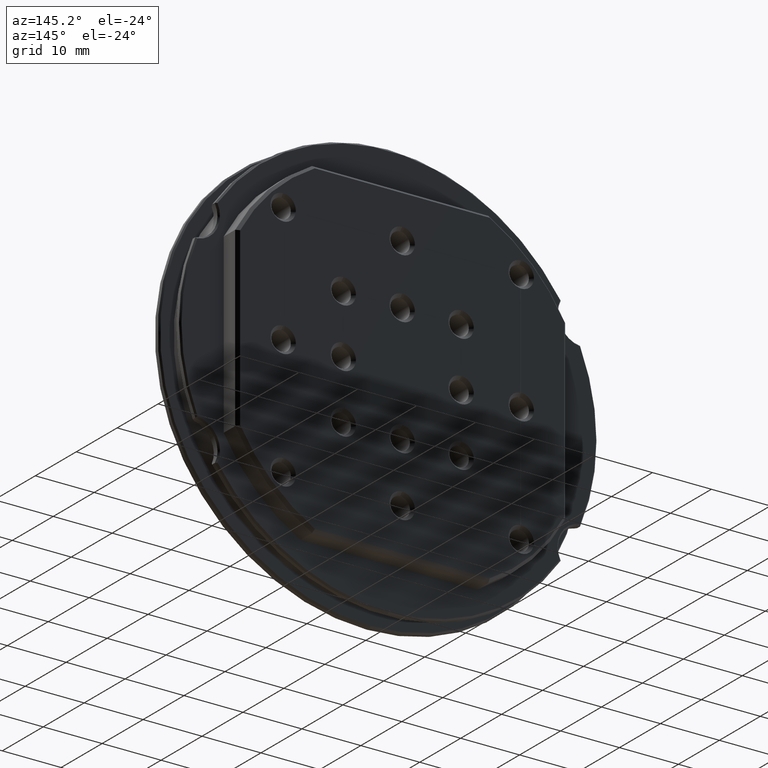
[diagram: clean part render]
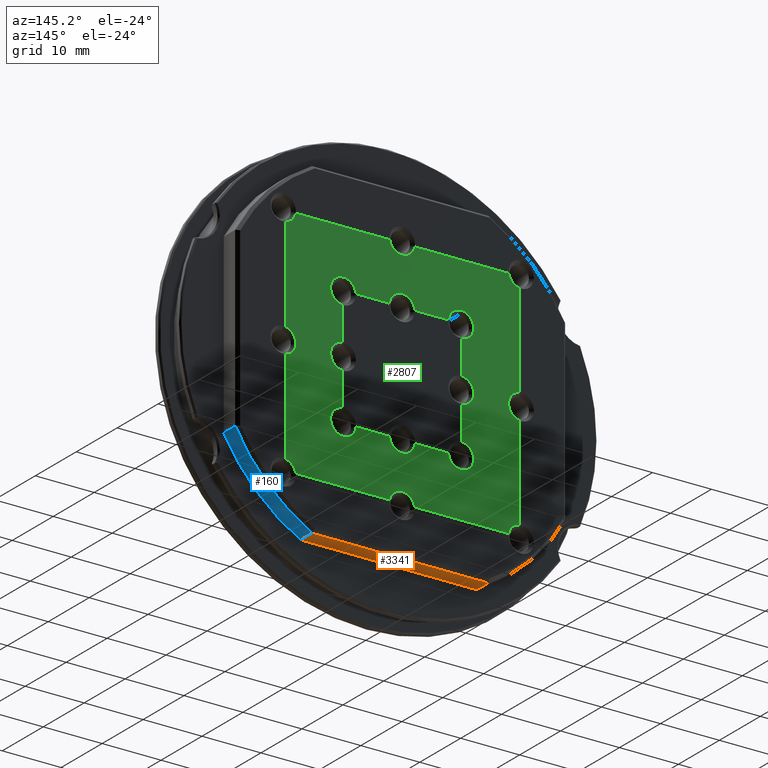
[diagram: same view with three faces highlighted in distinct colors, each labeled with its STEP entity id]
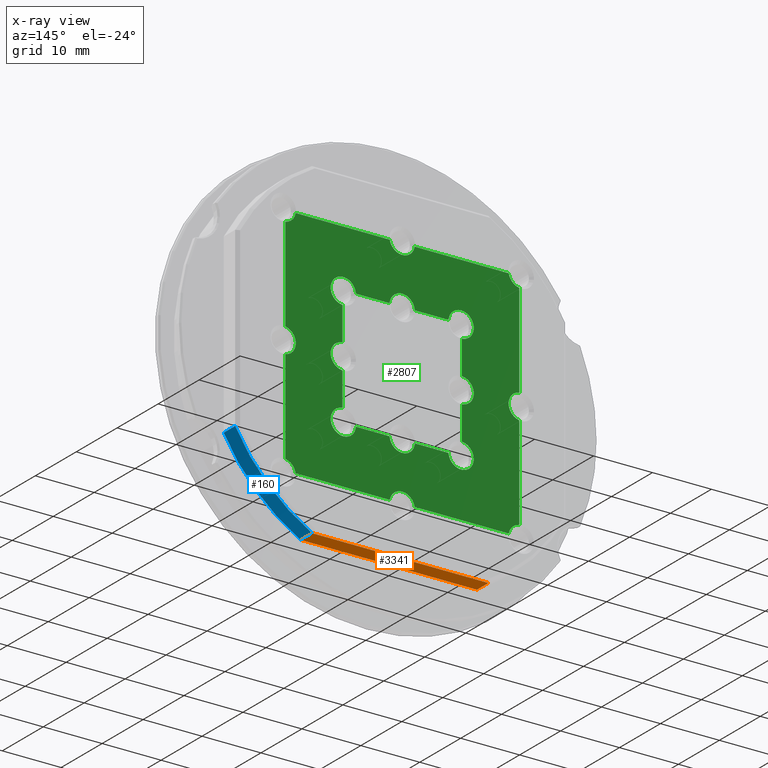
[diagram: x-ray of the same camera — body ghosted, the three highlighted faces saturated]
A machine part, auxiliary view with three faces highlighted in distinct colors.
The next image is the same camera in x-ray (body ghosted, the three faces saturated) — at least one of them is partly hidden behind the body in this view.
Their STEP definitions:

[orange] entity #3341 — the highlighted planar face has unit normal (-0, 0, -1).
#35 = DIRECTION ( 'NONE',  ( -1.239088197126290817E-16, 0.000000000000000000, -1.000000000000000000 ) ) ;
#250 = CARTESIAN_POINT ( 'NONE',  ( -14.96871737992272067, 5.599999999999999645, -27.99999999999998934 ) ) ;
#811 = VECTOR ( 'NONE', #7207, 1000.000000000000000 ) ;
#1048 = ORIENTED_EDGE ( 'NONE', *, *, #6518, .F. ) ;
#1058 = CARTESIAN_POINT ( 'NONE',  ( 14.96871737992271356, 8.399999999999993250, -27.99999999999999645 ) ) ;
#1245 = VERTEX_POINT ( 'NONE', #7459 ) ;
#1435 = VECTOR ( 'NONE', #5749, 1000.000000000000000 ) ;
#1964 = PLANE ( 'NONE',  #6772 ) ;
#2304 = FACE_OUTER_BOUND ( 'NONE', #4625, .T. ) ;
#2364 = CARTESIAN_POINT ( 'NONE',  ( -14.96871737992272067, 8.399999999999991473, -27.99999999999998934 ) ) ;
#2607 = DIRECTION ( 'NONE',  ( -1.000000000000000000, 0.000000000000000000, 1.239088197126290817E-16 ) ) ;
#2705 = VECTOR ( 'NONE', #5444, 1000.000000000000000 ) ;
#3341 = ADVANCED_FACE ( 'NONE', ( #2304 ), #1964, .T. ) ;
#3415 = EDGE_CURVE ( 'NONE', #1245, #7329, #5801, .T. ) ;
#3891 = CARTESIAN_POINT ( 'NONE',  ( 28.00000000000001066, -97.59741551495429235, -27.99999999999999645 ) ) ;
#3902 = CARTESIAN_POINT ( 'NONE',  ( -14.96871737992272422, 5.599999999999994316, -27.99999999999998934 ) ) ;
#4566 = CARTESIAN_POINT ( 'NONE',  ( 28.00000000000001066, 8.399999999999991473, -27.99999999999999645 ) ) ;
#4625 = EDGE_LOOP ( 'NONE', ( #1048, #8094, #6519, #6091 ) ) ;
#4678 = DIRECTION ( 'NONE',  ( 0.000000000000000000, -1.000000000000000000, 0.000000000000000000 ) ) ;
#4738 = CARTESIAN_POINT ( 'NONE',  ( 28.00000000000001066, 5.599999999999994316, -27.99999999999999645 ) ) ;
#4769 = LINE ( 'NONE', #4738, #2705 ) ;
#4803 = LINE ( 'NONE', #4566, #1435 ) ;
#5103 = LINE ( 'NONE', #250, #7473 ) ;
#5162 = EDGE_CURVE ( 'NONE', #6852, #7329, #4803, .T. ) ;
#5274 = CARTESIAN_POINT ( 'NONE',  ( 14.96871737992271356, 5.599999999999999645, -27.99999999999999645 ) ) ;
#5444 = DIRECTION ( 'NONE',  ( 1.000000000000000000, 0.000000000000000000, -1.239088197126290817E-16 ) ) ;
#5676 = VERTEX_POINT ( 'NONE', #3902 ) ;
#5749 = DIRECTION ( 'NONE',  ( 1.000000000000000000, 0.000000000000000000, -1.239088197126290817E-16 ) ) ;
#5801 = LINE ( 'NONE', #5274, #811 ) ;
#6091 = ORIENTED_EDGE ( 'NONE', *, *, #7330, .F. ) ;
#6518 = EDGE_CURVE ( 'NONE', #6852, #5676, #5103, .T. ) ;
#6519 = ORIENTED_EDGE ( 'NONE', *, *, #3415, .F. ) ;
#6772 = AXIS2_PLACEMENT_3D ( 'NONE', #3891, #35, #2607 ) ;
#6852 = VERTEX_POINT ( 'NONE', #2364 ) ;
#7207 = DIRECTION ( 'NONE',  ( -0.000000000000000000, 1.000000000000000000, -0.000000000000000000 ) ) ;
#7329 = VERTEX_POINT ( 'NONE', #1058 ) ;
#7330 = EDGE_CURVE ( 'NONE', #5676, #1245, #4769, .T. ) ;
#7459 = CARTESIAN_POINT ( 'NONE',  ( 14.96871737992271356, 5.599999999999999645, -27.99999999999999645 ) ) ;
#7473 = VECTOR ( 'NONE', #4678, 1000.000000000000000 ) ;
#8094 = ORIENTED_EDGE ( 'NONE', *, *, #5162, .T. ) ;

[blue] entity #160 — the highlighted cylindrical surface (partial cylindrical patch) has radius 31.75 mm, axis along (-0, 1, -0).
#160 = ADVANCED_FACE ( 'NONE', ( #4773 ), #7362, .T. ) ;
#195 = CARTESIAN_POINT ( 'NONE',  ( 28.00000000000001066, 5.599999999999994316, -14.96871737992268336 ) ) ;
#471 = CARTESIAN_POINT ( 'NONE',  ( 28.00000000000001066, 5.599999999999999645, -14.96871737992268514 ) ) ;
#718 = DIRECTION ( 'NONE',  ( 0.000000000000000000, 1.000000000000000000, 0.000000000000000000 ) ) ;
#811 = VECTOR ( 'NONE', #7207, 1000.000000000000000 ) ;
#861 = VECTOR ( 'NONE', #7448, 1000.000000000000000 ) ;
#1058 = CARTESIAN_POINT ( 'NONE',  ( 14.96871737992271356, 8.399999999999993250, -27.99999999999999645 ) ) ;
#1245 = VERTEX_POINT ( 'NONE', #7459 ) ;
#1380 = DIRECTION ( 'NONE',  ( 0.000000000000000000, 0.000000000000000000, 1.000000000000000000 ) ) ;
#1555 = EDGE_CURVE ( 'NONE', #7329, #7964, #4250, .T. ) ;
#1765 = EDGE_CURVE ( 'NONE', #7964, #3015, #4225, .T. ) ;
#1823 = AXIS2_PLACEMENT_3D ( 'NONE', #3285, #718, #1380 ) ;
#2127 = DIRECTION ( 'NONE',  ( 2.664535259100375697E-15, 0.000000000000000000, 1.000000000000000000 ) ) ;
#2216 = ORIENTED_EDGE ( 'NONE', *, *, #3415, .T. ) ;
#2762 = CARTESIAN_POINT ( 'NONE',  ( 0.000000000000000000, 5.599999999999999645, 0.000000000000000000 ) ) ;
#2789 = DIRECTION ( 'NONE',  ( -0.000000000000000000, 1.000000000000000000, -0.000000000000000000 ) ) ;
#2837 = ORIENTED_EDGE ( 'NONE', *, *, #1765, .T. ) ;
#2872 = AXIS2_PLACEMENT_3D ( 'NONE', #5957, #4603, #2127 ) ;
#3015 = VERTEX_POINT ( 'NONE', #195 ) ;
#3285 = CARTESIAN_POINT ( 'NONE',  ( 0.000000000000000000, 5.599999999999999645, 0.000000000000000000 ) ) ;
#3307 = EDGE_CURVE ( 'NONE', #3015, #1245, #4389, .T. ) ;
#3415 = EDGE_CURVE ( 'NONE', #1245, #7329, #5801, .T. ) ;
#3928 = ORIENTED_EDGE ( 'NONE', *, *, #3307, .T. ) ;
#4225 = LINE ( 'NONE', #471, #861 ) ;
#4250 = CIRCLE ( 'NONE', #2872, 31.75000000000000000 ) ;
#4389 = CIRCLE ( 'NONE', #1823, 31.75000000000000000 ) ;
#4603 = DIRECTION ( 'NONE',  ( 0.000000000000000000, -1.000000000000000000, 0.000000000000000000 ) ) ;
#4668 = CARTESIAN_POINT ( 'NONE',  ( 28.00000000000001066, 8.399999999999993250, -14.96871737992268514 ) ) ;
#4773 = FACE_OUTER_BOUND ( 'NONE', #5248, .T. ) ;
#4954 = ORIENTED_EDGE ( 'NONE', *, *, #1555, .T. ) ;
#5248 = EDGE_LOOP ( 'NONE', ( #2216, #4954, #2837, #3928 ) ) ;
#5274 = CARTESIAN_POINT ( 'NONE',  ( 14.96871737992271356, 5.599999999999999645, -27.99999999999999645 ) ) ;
#5801 = LINE ( 'NONE', #5274, #811 ) ;
#5957 = CARTESIAN_POINT ( 'NONE',  ( 0.000000000000000000, 8.399999999999993250, 0.000000000000000000 ) ) ;
#6156 = DIRECTION ( 'NONE',  ( 0.000000000000000000, 0.000000000000000000, 1.000000000000000000 ) ) ;
#7207 = DIRECTION ( 'NONE',  ( -0.000000000000000000, 1.000000000000000000, -0.000000000000000000 ) ) ;
#7329 = VERTEX_POINT ( 'NONE', #1058 ) ;
#7362 = CYLINDRICAL_SURFACE ( 'NONE', #7555, 31.75000000000000000 ) ;
#7448 = DIRECTION ( 'NONE',  ( 0.000000000000000000, -1.000000000000000000, 0.000000000000000000 ) ) ;
#7459 = CARTESIAN_POINT ( 'NONE',  ( 14.96871737992271356, 5.599999999999999645, -27.99999999999999645 ) ) ;
#7555 = AXIS2_PLACEMENT_3D ( 'NONE', #2762, #2789, #6156 ) ;
#7964 = VERTEX_POINT ( 'NONE', #4668 ) ;

[green] entity #2807 — the highlighted planar face has unit normal (0, 1, 0).
#45 = CARTESIAN_POINT ( 'NONE',  ( 10.14999999999999858, 8.900000000000000355, -10.14999999999999858 ) ) ;
#49 = VERTEX_POINT ( 'NONE', #167 ) ;
#68 = CARTESIAN_POINT ( 'NONE',  ( 18.07867965644035735, 8.900000000000000355, -19.85000000000000142 ) ) ;
#90 = DIRECTION ( 'NONE',  ( 8.739161088044368206E-17, 0.000000000000000000, 1.000000000000000000 ) ) ;
#102 = DIRECTION ( 'NONE',  ( 0.000000000000000000, 0.000000000000000000, 1.000000000000000000 ) ) ;
#115 = VERTEX_POINT ( 'NONE', #3365 ) ;
#167 = CARTESIAN_POINT ( 'NONE',  ( -10.15000000000000213, 8.900000000000000355, -2.144761058952734611 ) ) ;
#178 = AXIS2_PLACEMENT_3D ( 'NONE', #6259, #1832, #6282 ) ;
#181 = CARTESIAN_POINT ( 'NONE',  ( 4.643338886399778886E-15, 8.900000000000000355, -9.999999999999998224 ) ) ;
#263 = CARTESIAN_POINT ( 'NONE',  ( -7.855238941047279155, 8.900000000000000355, 10.15000000000000213 ) ) ;
#265 = CARTESIAN_POINT ( 'NONE',  ( 10.00000000000000178, 8.900000000000000355, 0.000000000000000000 ) ) ;
#305 = VERTEX_POINT ( 'NONE', #1803 ) ;
#333 = VERTEX_POINT ( 'NONE', #2481 ) ;
#337 = ORIENTED_EDGE ( 'NONE', *, *, #4877, .F. ) ;
#340 = DIRECTION ( 'NONE',  ( 0.000000000000000000, 0.000000000000000000, 1.000000000000000000 ) ) ;
#349 = CARTESIAN_POINT ( 'NONE',  ( 19.85000000000000497, 8.900000000000000355, 18.07867965644035735 ) ) ;
#356 = CARTESIAN_POINT ( 'NONE',  ( 2.121320343559643717, 8.900000000000000355, -19.85000000000000142 ) ) ;
#377 = CIRCLE ( 'NONE', #3976, 2.149999999999999023 ) ;
#384 = DIRECTION ( 'NONE',  ( -0.000000000000000000, 1.000000000000000000, -0.000000000000000000 ) ) ;
#388 = DIRECTION ( 'NONE',  ( 0.000000000000000000, 0.000000000000000000, 1.000000000000000000 ) ) ;
#426 = CARTESIAN_POINT ( 'NONE',  ( -20.19999999999999929, 8.900000000000000355, 20.19999999999999574 ) ) ;
#442 = DIRECTION ( 'NONE',  ( -0.000000000000000000, 1.000000000000000000, -0.000000000000000000 ) ) ;
#461 = DIRECTION ( 'NONE',  ( 1.000000000000000000, 0.000000000000000000, 0.000000000000000000 ) ) ;
#462 = DIRECTION ( 'NONE',  ( 1.000000000000000000, 0.000000000000000000, 0.000000000000000000 ) ) ;
#496 = AXIS2_PLACEMENT_3D ( 'NONE', #6508, #2715, #5250 ) ;
#572 = EDGE_LOOP ( 'NONE', ( #643, #5467, #7892, #4636, #4890, #653, #1382, #6043, #337, #1851, #2188, #6622, #7299, #4328, #5646, #6828, #790, #3739, #6935, #2536, #2308, #3418 ) ) ;
#583 = DIRECTION ( 'NONE',  ( -1.000000000000000000, -0.000000000000000000, -0.000000000000000000 ) ) ;
#587 = EDGE_CURVE ( 'NONE', #6347, #2937, #2094, .T. ) ;
#621 = CARTESIAN_POINT ( 'NONE',  ( -19.84999999999999787, 8.900000000000000355, -19.85000000000000142 ) ) ;
#643 = ORIENTED_EDGE ( 'NONE', *, *, #587, .F. ) ;
#653 = ORIENTED_EDGE ( 'NONE', *, *, #5891, .F. ) ;
#730 = ORIENTED_EDGE ( 'NONE', *, *, #6506, .T. ) ;
#761 = CARTESIAN_POINT ( 'NONE',  ( 10.00000000000000178, 8.900000000000000355, -10.00000000000000000 ) ) ;
#774 = AXIS2_PLACEMENT_3D ( 'NONE', #6000, #4723, #6654 ) ;
#788 = CARTESIAN_POINT ( 'NONE',  ( 20.20000000000000284, 8.900000000000000355, 20.19999999999999929 ) ) ;
#790 = ORIENTED_EDGE ( 'NONE', *, *, #5344, .F. ) ;
#801 = CARTESIAN_POINT ( 'NONE',  ( -10.15000000000000036, 8.900000000000000355, 10.15000000000000213 ) ) ;
#823 = ORIENTED_EDGE ( 'NONE', *, *, #1710, .F. ) ;
#870 = DIRECTION ( 'NONE',  ( 0.000000000000000000, 0.000000000000000000, 1.000000000000000000 ) ) ;
#908 = CARTESIAN_POINT ( 'NONE',  ( -9.999999999999998224, 8.900000000000000355, 9.999999999999998224 ) ) ;
#951 = AXIS2_PLACEMENT_3D ( 'NONE', #6492, #5204, #3878 ) ;
#982 = CIRCLE ( 'NONE', #7069, 2.149999999999999023 ) ;
#992 = DIRECTION ( 'NONE',  ( 0.000000000000000000, 0.000000000000000000, 1.000000000000000000 ) ) ;
#1005 = CARTESIAN_POINT ( 'NONE',  ( 4.906637948216459613E-15, 8.900000000000000355, -12.14999999999999680 ) ) ;
#1006 = CARTESIAN_POINT ( 'NONE',  ( 10.15000000000000036, 8.900000000000000355, 7.855238941047277379 ) ) ;
#1071 = CARTESIAN_POINT ( 'NONE',  ( 10.14999999999999858, 8.900000000000000355, -7.855238941047279155 ) ) ;
#1087 = EDGE_CURVE ( 'NONE', #2967, #4711, #3384, .T. ) ;
#1124 = CIRCLE ( 'NONE', #2727, 2.149999999999999023 ) ;
#1148 = AXIS2_PLACEMENT_3D ( 'NONE', #6983, #5665, #2490 ) ;
#1248 = EDGE_CURVE ( 'NONE', #2937, #8081, #2785, .T. ) ;
#1260 = EDGE_LOOP ( 'NONE', ( #7687, #5392, #1753, #5822, #2114, #6810, #730, #4953, #1365, #4916, #3706, #823, #4564, #7288, #4106, #7891, #6656, #6602 ) ) ;
#1316 = CARTESIAN_POINT ( 'NONE',  ( -9.999999999999998224, 8.900000000000000355, -12.14999999999999680 ) ) ;
#1328 = LINE ( 'NONE', #1697, #3407 ) ;
#1333 = CARTESIAN_POINT ( 'NONE',  ( -19.84999999999999787, 8.900000000000000355, -18.07867965644035380 ) ) ;
#1338 = VERTEX_POINT ( 'NONE', #6891 ) ;
#1365 = ORIENTED_EDGE ( 'NONE', *, *, #3540, .T. ) ;
#1375 = VECTOR ( 'NONE', #5469, 1000.000000000000000 ) ;
#1382 = ORIENTED_EDGE ( 'NONE', *, *, #4976, .F. ) ;
#1405 = EDGE_CURVE ( 'NONE', #7600, #4806, #5672, .T. ) ;
#1433 = VECTOR ( 'NONE', #7332, 1000.000000000000000 ) ;
#1461 = LINE ( 'NONE', #621, #2664 ) ;
#1515 = CIRCLE ( 'NONE', #7199, 2.149999999999999023 ) ;
#1564 = VERTEX_POINT ( 'NONE', #4683 ) ;
#1582 = AXIS2_PLACEMENT_3D ( 'NONE', #2879, #7916, #992 ) ;
#1592 = CIRCLE ( 'NONE', #4816, 2.150000000000000799 ) ;
#1597 = DIRECTION ( 'NONE',  ( -0.000000000000000000, 1.000000000000000000, -0.000000000000000000 ) ) ;
#1604 = EDGE_CURVE ( 'NONE', #5745, #1564, #377, .T. ) ;
#1616 = CARTESIAN_POINT ( 'NONE',  ( 4.643338886399778886E-15, 8.900000000000000355, 9.999999999999998224 ) ) ;
#1622 = VECTOR ( 'NONE', #461, 1000.000000000000000 ) ;
#1635 = CARTESIAN_POINT ( 'NONE',  ( -9.999999999999998224, 8.900000000000000355, -9.999999999999998224 ) ) ;
#1639 = VECTOR ( 'NONE', #4308, 1000.000000000000000 ) ;
#1673 = CARTESIAN_POINT ( 'NONE',  ( -19.84999999999999787, 8.900000000000000355, -19.85000000000000142 ) ) ;
#1676 = AXIS2_PLACEMENT_3D ( 'NONE', #1616, #2956, #4770 ) ;
#1684 = CIRCLE ( 'NONE', #1148, 2.149999999999999023 ) ;
#1697 = CARTESIAN_POINT ( 'NONE',  ( -10.15000000000000036, 8.900000000000000355, 10.15000000000000213 ) ) ;
#1710 = EDGE_CURVE ( 'NONE', #2102, #1734, #2654, .T. ) ;
#1734 = VERTEX_POINT ( 'NONE', #4089 ) ;
#1753 = ORIENTED_EDGE ( 'NONE', *, *, #7140, .F. ) ;
#1803 = CARTESIAN_POINT ( 'NONE',  ( -7.855238941047279155, 8.900000000000000355, -10.14999999999999858 ) ) ;
#1828 = EDGE_CURVE ( 'NONE', #3453, #115, #2745, .T. ) ;
#1832 = DIRECTION ( 'NONE',  ( -0.000000000000000000, 1.000000000000000000, -0.000000000000000000 ) ) ;
#1851 = ORIENTED_EDGE ( 'NONE', *, *, #1405, .F. ) ;
#1870 = CIRCLE ( 'NONE', #3424, 2.149999999999999023 ) ;
#1962 = VERTEX_POINT ( 'NONE', #1333 ) ;
#1980 = DIRECTION ( 'NONE',  ( 0.000000000000000000, 0.000000000000000000, 1.000000000000000000 ) ) ;
#2070 = CARTESIAN_POINT ( 'NONE',  ( -9.999999999999998224, 8.900000000000000355, 9.999999999999998224 ) ) ;
#2077 = DIRECTION ( 'NONE',  ( 0.000000000000000000, 0.000000000000000000, 1.000000000000000000 ) ) ;
#2086 = DIRECTION ( 'NONE',  ( -0.000000000000000000, 1.000000000000000000, -0.000000000000000000 ) ) ;
#2094 = LINE ( 'NONE', #7859, #5290 ) ;
#2102 = VERTEX_POINT ( 'NONE', #5366 ) ;
#2105 = CARTESIAN_POINT ( 'NONE',  ( 18.07867965644036445, 8.900000000000000355, 19.84999999999999787 ) ) ;
#2114 = ORIENTED_EDGE ( 'NONE', *, *, #6917, .T. ) ;
#2188 = ORIENTED_EDGE ( 'NONE', *, *, #4414, .F. ) ;
#2225 = CARTESIAN_POINT ( 'NONE',  ( -10.15000000000000213, 8.900000000000000355, -7.855238941047279155 ) ) ;
#2296 = CARTESIAN_POINT ( 'NONE',  ( 10.00000000000000355, 8.900000000000000355, 12.15000000000000036 ) ) ;
#2308 = ORIENTED_EDGE ( 'NONE', *, *, #4942, .F. ) ;
#2338 = CARTESIAN_POINT ( 'NONE',  ( 19.84999999999999787, 8.900000000000000355, -19.85000000000000142 ) ) ;
#2342 = DIRECTION ( 'NONE',  ( 0.000000000000000000, 0.000000000000000000, 1.000000000000000000 ) ) ;
#2381 = DIRECTION ( 'NONE',  ( -0.000000000000000000, 1.000000000000000000, -0.000000000000000000 ) ) ;
#2398 = CIRCLE ( 'NONE', #4595, 2.149999999999999023 ) ;
#2402 = CARTESIAN_POINT ( 'NONE',  ( 20.20000000000000284, 8.900000000000000355, 0.000000000000000000 ) ) ;
#2431 = AXIS2_PLACEMENT_3D ( 'NONE', #7100, #6998, #2583 ) ;
#2446 = CIRCLE ( 'NONE', #496, 2.149999999999999023 ) ;
#2464 = EDGE_CURVE ( 'NONE', #6134, #1338, #2446, .T. ) ;
#2481 = CARTESIAN_POINT ( 'NONE',  ( -2.144761058952717292, 8.900000000000000355, -10.14999999999999858 ) ) ;
#2490 = DIRECTION ( 'NONE',  ( 0.000000000000000000, 0.000000000000000000, 1.000000000000000000 ) ) ;
#2516 = CARTESIAN_POINT ( 'NONE',  ( 7.855238941047280932, 8.900000000000000355, -10.14999999999999858 ) ) ;
#2536 = ORIENTED_EDGE ( 'NONE', *, *, #5996, .F. ) ;
#2583 = DIRECTION ( 'NONE',  ( 0.000000000000000000, 0.000000000000000000, 1.000000000000000000 ) ) ;
#2590 = CIRCLE ( 'NONE', #2431, 2.149999999999999023 ) ;
#2598 = DIRECTION ( 'NONE',  ( -0.000000000000000000, 1.000000000000000000, -0.000000000000000000 ) ) ;
#2654 = CIRCLE ( 'NONE', #1582, 2.149999999999999023 ) ;
#2664 = VECTOR ( 'NONE', #2707, 1000.000000000000000 ) ;
#2707 = DIRECTION ( 'NONE',  ( -1.000000000000000000, -0.000000000000000000, -0.000000000000000000 ) ) ;
#2709 = AXIS2_PLACEMENT_3D ( 'NONE', #6795, #442, #4867 ) ;
#2715 = DIRECTION ( 'NONE',  ( -0.000000000000000000, 1.000000000000000000, -0.000000000000000000 ) ) ;
#2727 = AXIS2_PLACEMENT_3D ( 'NONE', #7664, #2598, #7044 ) ;
#2745 = LINE ( 'NONE', #8104, #1639 ) ;
#2785 = CIRCLE ( 'NONE', #178, 2.149999999999999023 ) ;
#2797 = CARTESIAN_POINT ( 'NONE',  ( -10.15000000000000213, 8.900000000000000355, -10.14999999999999858 ) ) ;
#2801 = VECTOR ( 'NONE', #6541, 1000.000000000000000 ) ;
#2807 = ADVANCED_FACE ( 'NONE', ( #4895, #4111 ), #4883, .T. ) ;
#2815 = VERTEX_POINT ( 'NONE', #3767 ) ;
#2835 = VECTOR ( 'NONE', #6209, 1000.000000000000000 ) ;
#2848 = CARTESIAN_POINT ( 'NONE',  ( -18.07867965644035735, 8.900000000000000355, 19.84999999999999787 ) ) ;
#2879 = CARTESIAN_POINT ( 'NONE',  ( 0.000000000000000000, 8.900000000000000355, 20.19999999999999574 ) ) ;
#2880 = DIRECTION ( 'NONE',  ( 0.000000000000000000, 0.000000000000000000, 1.000000000000000000 ) ) ;
#2909 = CIRCLE ( 'NONE', #5042, 2.149999999999999023 ) ;
#2937 = VERTEX_POINT ( 'NONE', #4478 ) ;
#2942 = VERTEX_POINT ( 'NONE', #3908 ) ;
#2956 = DIRECTION ( 'NONE',  ( -0.000000000000000000, 1.000000000000000000, -0.000000000000000000 ) ) ;
#2967 = VERTEX_POINT ( 'NONE', #5831 ) ;
#2984 = EDGE_CURVE ( 'NONE', #5119, #7148, #1124, .T. ) ;
#3036 = EDGE_CURVE ( 'NONE', #4048, #5452, #1515, .T. ) ;
#3155 = CARTESIAN_POINT ( 'NONE',  ( 4.643338886399778886E-15, 8.900000000000000355, 9.999999999999998224 ) ) ;
#3164 = CIRCLE ( 'NONE', #3679, 2.149999999999999023 ) ;
#3226 = CARTESIAN_POINT ( 'NONE',  ( -19.84999999999999787, 8.900000000000000355, -19.85000000000000142 ) ) ;
#3288 = CIRCLE ( 'NONE', #7271, 2.149999999999999023 ) ;
#3306 = DIRECTION ( 'NONE',  ( -0.000000000000000000, 1.000000000000000000, -0.000000000000000000 ) ) ;
#3324 = CARTESIAN_POINT ( 'NONE',  ( -20.20000000000000284, 8.900000000000000355, -1.387778780781445676E-14 ) ) ;
#3345 = DIRECTION ( 'NONE',  ( 8.545435842250280986E-17, 0.000000000000000000, 1.000000000000000000 ) ) ;
#3365 = CARTESIAN_POINT ( 'NONE',  ( 19.85000000000000142, 8.900000000000000355, 2.121320343559641497 ) ) ;
#3374 = DIRECTION ( 'NONE',  ( 0.000000000000000000, 0.000000000000000000, 1.000000000000000000 ) ) ;
#3384 = CIRCLE ( 'NONE', #7729, 2.149999999999999023 ) ;
#3407 = VECTOR ( 'NONE', #462, 1000.000000000000000 ) ;
#3418 = ORIENTED_EDGE ( 'NONE', *, *, #1248, .F. ) ;
#3424 = AXIS2_PLACEMENT_3D ( 'NONE', #5544, #4939, #3683 ) ;
#3453 = VERTEX_POINT ( 'NONE', #349 ) ;
#3540 = EDGE_CURVE ( 'NONE', #5745, #2942, #3770, .T. ) ;
#3586 = VECTOR ( 'NONE', #90, 1000.000000000000000 ) ;
#3642 = EDGE_CURVE ( 'NONE', #4506, #115, #2398, .T. ) ;
#3679 = AXIS2_PLACEMENT_3D ( 'NONE', #788, #3306, #7740 ) ;
#3683 = DIRECTION ( 'NONE',  ( 0.000000000000000000, 0.000000000000000000, 1.000000000000000000 ) ) ;
#3706 = ORIENTED_EDGE ( 'NONE', *, *, #4575, .T. ) ;
#3739 = ORIENTED_EDGE ( 'NONE', *, *, #7043, .F. ) ;
#3761 = EDGE_CURVE ( 'NONE', #1962, #6452, #1684, .T. ) ;
#3765 = CARTESIAN_POINT ( 'NONE',  ( 10.00000000000000178, 8.900000000000000355, -10.00000000000000000 ) ) ;
#3767 = CARTESIAN_POINT ( 'NONE',  ( 7.855238941047282708, 8.900000000000000355, 10.15000000000000213 ) ) ;
#3770 = LINE ( 'NONE', #1673, #5903 ) ;
#3784 = VERTEX_POINT ( 'NONE', #5803 ) ;
#3807 = CARTESIAN_POINT ( 'NONE',  ( 4.643338886399778886E-15, 8.900000000000000355, 12.14999999999999680 ) ) ;
#3866 = EDGE_CURVE ( 'NONE', #3453, #5809, #3164, .T. ) ;
#3878 = DIRECTION ( 'NONE',  ( 0.000000000000000000, 0.000000000000000000, 1.000000000000000000 ) ) ;
#3900 = LINE ( 'NONE', #2797, #4795 ) ;
#3908 = CARTESIAN_POINT ( 'NONE',  ( -19.84999999999999787, 8.900000000000000355, 18.07867965644035735 ) ) ;
#3942 = LINE ( 'NONE', #6097, #1375 ) ;
#3974 = AXIS2_PLACEMENT_3D ( 'NONE', #908, #384, #4809 ) ;
#3976 = AXIS2_PLACEMENT_3D ( 'NONE', #3324, #7755, #2077 ) ;
#4013 = VERTEX_POINT ( 'NONE', #263 ) ;
#4015 = DIRECTION ( 'NONE',  ( 8.545435842250280986E-17, 0.000000000000000000, 1.000000000000000000 ) ) ;
#4048 = VERTEX_POINT ( 'NONE', #7354 ) ;
#4058 = VERTEX_POINT ( 'NONE', #1006 ) ;
#4089 = CARTESIAN_POINT ( 'NONE',  ( -2.121320343559642385, 8.900000000000000355, 19.84999999999999787 ) ) ;
#4106 = ORIENTED_EDGE ( 'NONE', *, *, #3866, .F. ) ;
#4111 = FACE_OUTER_BOUND ( 'NONE', #1260, .T. ) ;
#4186 = CARTESIAN_POINT ( 'NONE',  ( -19.84999999999999787, 8.900000000000000355, 19.84999999999999787 ) ) ;
#4220 = CARTESIAN_POINT ( 'NONE',  ( 0.000000000000000000, 8.900000000000000355, -18.04999999999999716 ) ) ;
#4257 = CIRCLE ( 'NONE', #4761, 2.149999999999999023 ) ;
#4274 = DIRECTION ( 'NONE',  ( 0.000000000000000000, -0.000000000000000000, 1.000000000000000000 ) ) ;
#4298 = CARTESIAN_POINT ( 'NONE',  ( 10.14999999999999858, 8.900000000000000355, -2.144761058952720845 ) ) ;
#4308 = DIRECTION ( 'NONE',  ( -1.747832217608873641E-16, -0.000000000000000000, -1.000000000000000000 ) ) ;
#4328 = ORIENTED_EDGE ( 'NONE', *, *, #1087, .F. ) ;
#4414 = EDGE_CURVE ( 'NONE', #5307, #7600, #5318, .T. ) ;
#4418 = CARTESIAN_POINT ( 'NONE',  ( 2.121320343559642829, 8.900000000000000355, 19.84999999999999787 ) ) ;
#4464 = DIRECTION ( 'NONE',  ( -8.545435842250280986E-17, -0.000000000000000000, -1.000000000000000000 ) ) ;
#4478 = CARTESIAN_POINT ( 'NONE',  ( 2.144761058952726618, 8.900000000000000355, -10.14999999999999858 ) ) ;
#4490 = VERTEX_POINT ( 'NONE', #2225 ) ;
#4506 = VERTEX_POINT ( 'NONE', #6728 ) ;
#4520 = LINE ( 'NONE', #6280, #2835 ) ;
#4527 = EDGE_CURVE ( 'NONE', #5505, #5809, #7977, .T. ) ;
#4530 = DIRECTION ( 'NONE',  ( -0.000000000000000000, 1.000000000000000000, -0.000000000000000000 ) ) ;
#4540 = EDGE_CURVE ( 'NONE', #4506, #1338, #4700, .T. ) ;
#4564 = ORIENTED_EDGE ( 'NONE', *, *, #5675, .F. ) ;
#4575 = EDGE_CURVE ( 'NONE', #7035, #1734, #7965, .T. ) ;
#4595 = AXIS2_PLACEMENT_3D ( 'NONE', #2402, #4941, #2342 ) ;
#4636 = ORIENTED_EDGE ( 'NONE', *, *, #6943, .F. ) ;
#4659 = DIRECTION ( 'NONE',  ( -1.000000000000000000, -0.000000000000000000, -0.000000000000000000 ) ) ;
#4683 = CARTESIAN_POINT ( 'NONE',  ( -19.84999999999999787, 8.900000000000000355, -2.121320343559654820 ) ) ;
#4700 = LINE ( 'NONE', #2338, #1433 ) ;
#4711 = VERTEX_POINT ( 'NONE', #7274 ) ;
#4720 = AXIS2_PLACEMENT_3D ( 'NONE', #3155, #5726, #102 ) ;
#4723 = DIRECTION ( 'NONE',  ( -0.000000000000000000, 1.000000000000000000, -0.000000000000000000 ) ) ;
#4735 = EDGE_CURVE ( 'NONE', #7035, #2942, #3288, .T. ) ;
#4761 = AXIS2_PLACEMENT_3D ( 'NONE', #1635, #6695, #340 ) ;
#4770 = DIRECTION ( 'NONE',  ( 0.000000000000000000, 0.000000000000000000, 1.000000000000000000 ) ) ;
#4795 = VECTOR ( 'NONE', #3345, 1000.000000000000000 ) ;
#4806 = VERTEX_POINT ( 'NONE', #5565 ) ;
#4809 = DIRECTION ( 'NONE',  ( 0.000000000000000000, 0.000000000000000000, 1.000000000000000000 ) ) ;
#4816 = AXIS2_PLACEMENT_3D ( 'NONE', #5497, #2381, #388 ) ;
#4822 = DIRECTION ( 'NONE',  ( -0.000000000000000000, 1.000000000000000000, -0.000000000000000000 ) ) ;
#4867 = DIRECTION ( 'NONE',  ( 0.000000000000000000, 0.000000000000000000, 1.000000000000000000 ) ) ;
#4877 = EDGE_CURVE ( 'NONE', #4806, #2815, #6770, .T. ) ;
#4883 = PLANE ( 'NONE',  #7391 ) ;
#4890 = ORIENTED_EDGE ( 'NONE', *, *, #3036, .F. ) ;
#4895 = FACE_BOUND ( 'NONE', #572, .T. ) ;
#4916 = ORIENTED_EDGE ( 'NONE', *, *, #4735, .F. ) ;
#4939 = DIRECTION ( 'NONE',  ( -0.000000000000000000, 1.000000000000000000, -0.000000000000000000 ) ) ;
#4941 = DIRECTION ( 'NONE',  ( -0.000000000000000000, 1.000000000000000000, -0.000000000000000000 ) ) ;
#4942 = EDGE_CURVE ( 'NONE', #8081, #333, #7842, .T. ) ;
#4953 = ORIENTED_EDGE ( 'NONE', *, *, #1604, .F. ) ;
#4966 = CARTESIAN_POINT ( 'NONE',  ( -19.84999999999999787, 8.900000000000000355, 19.84999999999999787 ) ) ;
#4974 = AXIS2_PLACEMENT_3D ( 'NONE', #181, #1597, #2880 ) ;
#4976 = EDGE_CURVE ( 'NONE', #5876, #4058, #1592, .T. ) ;
#4990 = EDGE_CURVE ( 'NONE', #2815, #5876, #6485, .T. ) ;
#5012 = CIRCLE ( 'NONE', #3974, 2.149999999999999023 ) ;
#5042 = AXIS2_PLACEMENT_3D ( 'NONE', #761, #4530, #7107 ) ;
#5119 = VERTEX_POINT ( 'NONE', #6272 ) ;
#5204 = DIRECTION ( 'NONE',  ( -0.000000000000000000, 1.000000000000000000, -0.000000000000000000 ) ) ;
#5246 = CARTESIAN_POINT ( 'NONE',  ( -2.144761058952716848, 8.900000000000000355, 10.15000000000000213 ) ) ;
#5250 = DIRECTION ( 'NONE',  ( 0.000000000000000000, 0.000000000000000000, 1.000000000000000000 ) ) ;
#5290 = VECTOR ( 'NONE', #4659, 1000.000000000000000 ) ;
#5307 = VERTEX_POINT ( 'NONE', #5246 ) ;
#5318 = CIRCLE ( 'NONE', #1676, 2.149999999999999023 ) ;
#5344 = EDGE_CURVE ( 'NONE', #4490, #49, #3900, .T. ) ;
#5366 = CARTESIAN_POINT ( 'NONE',  ( 2.632990618166809235E-16, 8.900000000000000355, 18.04999999999999716 ) ) ;
#5392 = ORIENTED_EDGE ( 'NONE', *, *, #7862, .T. ) ;
#5452 = VERTEX_POINT ( 'NONE', #4298 ) ;
#5467 = ORIENTED_EDGE ( 'NONE', *, *, #5716, .F. ) ;
#5469 = DIRECTION ( 'NONE',  ( -8.545435842250280986E-17, -0.000000000000000000, -1.000000000000000000 ) ) ;
#5488 = DIRECTION ( 'NONE',  ( 0.000000000000000000, 1.000000000000000000, 0.000000000000000000 ) ) ;
#5492 = EDGE_CURVE ( 'NONE', #4013, #5307, #1328, .T. ) ;
#5497 = CARTESIAN_POINT ( 'NONE',  ( 10.00000000000000355, 8.900000000000000355, 10.00000000000000000 ) ) ;
#5505 = VERTEX_POINT ( 'NONE', #4418 ) ;
#5537 = DIRECTION ( 'NONE',  ( 0.000000000000000000, 0.000000000000000000, 1.000000000000000000 ) ) ;
#5544 = CARTESIAN_POINT ( 'NONE',  ( 0.000000000000000000, 8.900000000000000355, -20.19999999999999574 ) ) ;
#5563 = CARTESIAN_POINT ( 'NONE',  ( -19.84999999999999787, 8.900000000000000355, -19.85000000000000142 ) ) ;
#5565 = CARTESIAN_POINT ( 'NONE',  ( 2.144761058952726174, 8.900000000000000355, 10.15000000000000213 ) ) ;
#5646 = ORIENTED_EDGE ( 'NONE', *, *, #7921, .F. ) ;
#5665 = DIRECTION ( 'NONE',  ( -0.000000000000000000, 1.000000000000000000, -0.000000000000000000 ) ) ;
#5672 = CIRCLE ( 'NONE', #4720, 2.149999999999999023 ) ;
#5675 = EDGE_CURVE ( 'NONE', #5505, #2102, #6290, .T. ) ;
#5716 = EDGE_CURVE ( 'NONE', #3784, #6347, #2909, .T. ) ;
#5726 = DIRECTION ( 'NONE',  ( -0.000000000000000000, 1.000000000000000000, -0.000000000000000000 ) ) ;
#5745 = VERTEX_POINT ( 'NONE', #5912 ) ;
#5803 = CARTESIAN_POINT ( 'NONE',  ( 10.00000000000000178, 8.900000000000000355, -12.14999999999999858 ) ) ;
#5809 = VERTEX_POINT ( 'NONE', #2105 ) ;
#5822 = ORIENTED_EDGE ( 'NONE', *, *, #2984, .F. ) ;
#5831 = CARTESIAN_POINT ( 'NONE',  ( -10.15000000000000036, 8.900000000000000355, 7.855238941047279155 ) ) ;
#5876 = VERTEX_POINT ( 'NONE', #2296 ) ;
#5889 = CARTESIAN_POINT ( 'NONE',  ( -10.15000000000000213, 8.900000000000000355, -10.14999999999999858 ) ) ;
#5891 = EDGE_CURVE ( 'NONE', #4058, #4048, #3942, .T. ) ;
#5903 = VECTOR ( 'NONE', #6086, 1000.000000000000000 ) ;
#5912 = CARTESIAN_POINT ( 'NONE',  ( -19.84999999999999787, 8.900000000000000355, 2.121320343559627286 ) ) ;
#5962 = VECTOR ( 'NONE', #583, 1000.000000000000000 ) ;
#5996 = EDGE_CURVE ( 'NONE', #333, #305, #4520, .T. ) ;
#6000 = CARTESIAN_POINT ( 'NONE',  ( -9.999999999999998224, 8.900000000000000355, -9.999999999999998224 ) ) ;
#6043 = ORIENTED_EDGE ( 'NONE', *, *, #4990, .F. ) ;
#6086 = DIRECTION ( 'NONE',  ( 8.739161088044368206E-17, 0.000000000000000000, 1.000000000000000000 ) ) ;
#6097 = CARTESIAN_POINT ( 'NONE',  ( 10.14999999999999858, 8.900000000000000355, -10.14999999999999858 ) ) ;
#6134 = VERTEX_POINT ( 'NONE', #68 ) ;
#6209 = DIRECTION ( 'NONE',  ( -1.000000000000000000, -0.000000000000000000, -0.000000000000000000 ) ) ;
#6210 = VERTEX_POINT ( 'NONE', #356 ) ;
#6232 = EDGE_CURVE ( 'NONE', #4711, #4013, #5012, .T. ) ;
#6259 = CARTESIAN_POINT ( 'NONE',  ( 4.643338886399778886E-15, 8.900000000000000355, -9.999999999999998224 ) ) ;
#6272 = CARTESIAN_POINT ( 'NONE',  ( -2.121320343559643717, 8.900000000000000355, -19.85000000000000142 ) ) ;
#6280 = CARTESIAN_POINT ( 'NONE',  ( -10.15000000000000213, 8.900000000000000355, -10.14999999999999858 ) ) ;
#6282 = DIRECTION ( 'NONE',  ( 0.000000000000000000, 0.000000000000000000, 1.000000000000000000 ) ) ;
#6290 = CIRCLE ( 'NONE', #951, 2.149999999999999023 ) ;
#6347 = VERTEX_POINT ( 'NONE', #2516 ) ;
#6413 = VECTOR ( 'NONE', #7930, 1000.000000000000000 ) ;
#6452 = VERTEX_POINT ( 'NONE', #7559 ) ;
#6485 = CIRCLE ( 'NONE', #2709, 2.150000000000000799 ) ;
#6492 = CARTESIAN_POINT ( 'NONE',  ( 0.000000000000000000, 8.900000000000000355, 20.19999999999999574 ) ) ;
#6506 = EDGE_CURVE ( 'NONE', #1962, #1564, #7371, .T. ) ;
#6508 = CARTESIAN_POINT ( 'NONE',  ( 20.19999999999999929, 8.900000000000000355, -20.19999999999999929 ) ) ;
#6541 = DIRECTION ( 'NONE',  ( 1.000000000000000000, 0.000000000000000000, 0.000000000000000000 ) ) ;
#6602 = ORIENTED_EDGE ( 'NONE', *, *, #4540, .T. ) ;
#6622 = ORIENTED_EDGE ( 'NONE', *, *, #5492, .F. ) ;
#6654 = DIRECTION ( 'NONE',  ( 0.000000000000000000, 0.000000000000000000, 1.000000000000000000 ) ) ;
#6656 = ORIENTED_EDGE ( 'NONE', *, *, #3642, .F. ) ;
#6695 = DIRECTION ( 'NONE',  ( -0.000000000000000000, 1.000000000000000000, -0.000000000000000000 ) ) ;
#6728 = CARTESIAN_POINT ( 'NONE',  ( 19.85000000000000142, 8.900000000000000355, -2.121320343559641497 ) ) ;
#6729 = VERTEX_POINT ( 'NONE', #1316 ) ;
#6770 = LINE ( 'NONE', #801, #2801 ) ;
#6795 = CARTESIAN_POINT ( 'NONE',  ( 10.00000000000000355, 8.900000000000000355, 10.00000000000000000 ) ) ;
#6810 = ORIENTED_EDGE ( 'NONE', *, *, #3761, .F. ) ;
#6818 = CARTESIAN_POINT ( 'NONE',  ( 0.000000000000000000, 8.900000000000000355, 0.000000000000000000 ) ) ;
#6828 = ORIENTED_EDGE ( 'NONE', *, *, #7593, .F. ) ;
#6891 = CARTESIAN_POINT ( 'NONE',  ( 19.84999999999999787, 8.900000000000000355, -18.07867965644035735 ) ) ;
#6917 = EDGE_CURVE ( 'NONE', #5119, #6452, #7625, .T. ) ;
#6935 = ORIENTED_EDGE ( 'NONE', *, *, #8038, .F. ) ;
#6943 = EDGE_CURVE ( 'NONE', #5452, #7098, #7231, .T. ) ;
#6983 = CARTESIAN_POINT ( 'NONE',  ( -20.19999999999999929, 8.900000000000000355, -20.19999999999999574 ) ) ;
#6998 = DIRECTION ( 'NONE',  ( -0.000000000000000000, 1.000000000000000000, -0.000000000000000000 ) ) ;
#7035 = VERTEX_POINT ( 'NONE', #2848 ) ;
#7043 = EDGE_CURVE ( 'NONE', #6729, #4490, #7134, .T. ) ;
#7044 = DIRECTION ( 'NONE',  ( 0.000000000000000000, 0.000000000000000000, 1.000000000000000000 ) ) ;
#7069 = AXIS2_PLACEMENT_3D ( 'NONE', #3765, #7576, #1980 ) ;
#7088 = CARTESIAN_POINT ( 'NONE',  ( -10.15000000000000213, 8.900000000000000355, 2.144761058952706634 ) ) ;
#7098 = VERTEX_POINT ( 'NONE', #1071 ) ;
#7100 = CARTESIAN_POINT ( 'NONE',  ( -10.00000000000000178, 8.900000000000000355, -1.387778780781445676E-14 ) ) ;
#7107 = DIRECTION ( 'NONE',  ( 0.000000000000000000, 0.000000000000000000, 1.000000000000000000 ) ) ;
#7134 = CIRCLE ( 'NONE', #774, 2.149999999999999023 ) ;
#7140 = EDGE_CURVE ( 'NONE', #7148, #6210, #1870, .T. ) ;
#7148 = VERTEX_POINT ( 'NONE', #4220 ) ;
#7176 = DIRECTION ( 'NONE',  ( -0.000000000000000000, 1.000000000000000000, -0.000000000000000000 ) ) ;
#7199 = AXIS2_PLACEMENT_3D ( 'NONE', #265, #2086, #870 ) ;
#7231 = LINE ( 'NONE', #45, #8103 ) ;
#7252 = LINE ( 'NONE', #5889, #7444 ) ;
#7271 = AXIS2_PLACEMENT_3D ( 'NONE', #426, #4822, #5537 ) ;
#7274 = CARTESIAN_POINT ( 'NONE',  ( -9.999999999999998224, 8.900000000000000355, 12.14999999999999680 ) ) ;
#7288 = ORIENTED_EDGE ( 'NONE', *, *, #4527, .T. ) ;
#7299 = ORIENTED_EDGE ( 'NONE', *, *, #6232, .F. ) ;
#7332 = DIRECTION ( 'NONE',  ( -1.747832217608873641E-16, -0.000000000000000000, -1.000000000000000000 ) ) ;
#7354 = CARTESIAN_POINT ( 'NONE',  ( 10.14999999999999858, 8.900000000000000355, 2.144761058952720845 ) ) ;
#7371 = LINE ( 'NONE', #3226, #3586 ) ;
#7391 = AXIS2_PLACEMENT_3D ( 'NONE', #6818, #5488, #4274 ) ;
#7444 = VECTOR ( 'NONE', #4015, 1000.000000000000000 ) ;
#7559 = CARTESIAN_POINT ( 'NONE',  ( -18.07867965644035735, 8.900000000000000355, -19.85000000000000142 ) ) ;
#7576 = DIRECTION ( 'NONE',  ( -0.000000000000000000, 1.000000000000000000, -0.000000000000000000 ) ) ;
#7593 = EDGE_CURVE ( 'NONE', #49, #7926, #2590, .T. ) ;
#7600 = VERTEX_POINT ( 'NONE', #3807 ) ;
#7625 = LINE ( 'NONE', #5563, #5962 ) ;
#7664 = CARTESIAN_POINT ( 'NONE',  ( 0.000000000000000000, 8.900000000000000355, -20.19999999999999574 ) ) ;
#7687 = ORIENTED_EDGE ( 'NONE', *, *, #2464, .F. ) ;
#7729 = AXIS2_PLACEMENT_3D ( 'NONE', #2070, #7176, #3374 ) ;
#7740 = DIRECTION ( 'NONE',  ( 0.000000000000000000, 0.000000000000000000, 1.000000000000000000 ) ) ;
#7755 = DIRECTION ( 'NONE',  ( -0.000000000000000000, 1.000000000000000000, -0.000000000000000000 ) ) ;
#7842 = CIRCLE ( 'NONE', #4974, 2.149999999999999023 ) ;
#7843 = EDGE_CURVE ( 'NONE', #7098, #3784, #982, .T. ) ;
#7859 = CARTESIAN_POINT ( 'NONE',  ( -10.15000000000000213, 8.900000000000000355, -10.14999999999999858 ) ) ;
#7862 = EDGE_CURVE ( 'NONE', #6134, #6210, #1461, .T. ) ;
#7891 = ORIENTED_EDGE ( 'NONE', *, *, #1828, .T. ) ;
#7892 = ORIENTED_EDGE ( 'NONE', *, *, #7843, .F. ) ;
#7916 = DIRECTION ( 'NONE',  ( -0.000000000000000000, 1.000000000000000000, -0.000000000000000000 ) ) ;
#7921 = EDGE_CURVE ( 'NONE', #7926, #2967, #7252, .T. ) ;
#7926 = VERTEX_POINT ( 'NONE', #7088 ) ;
#7930 = DIRECTION ( 'NONE',  ( 1.000000000000000000, 0.000000000000000000, 0.000000000000000000 ) ) ;
#7965 = LINE ( 'NONE', #4966, #1622 ) ;
#7977 = LINE ( 'NONE', #4186, #6413 ) ;
#8038 = EDGE_CURVE ( 'NONE', #305, #6729, #4257, .T. ) ;
#8081 = VERTEX_POINT ( 'NONE', #1005 ) ;
#8103 = VECTOR ( 'NONE', #4464, 1000.000000000000000 ) ;
#8104 = CARTESIAN_POINT ( 'NONE',  ( 19.84999999999999787, 8.900000000000000355, -19.85000000000000142 ) ) ;